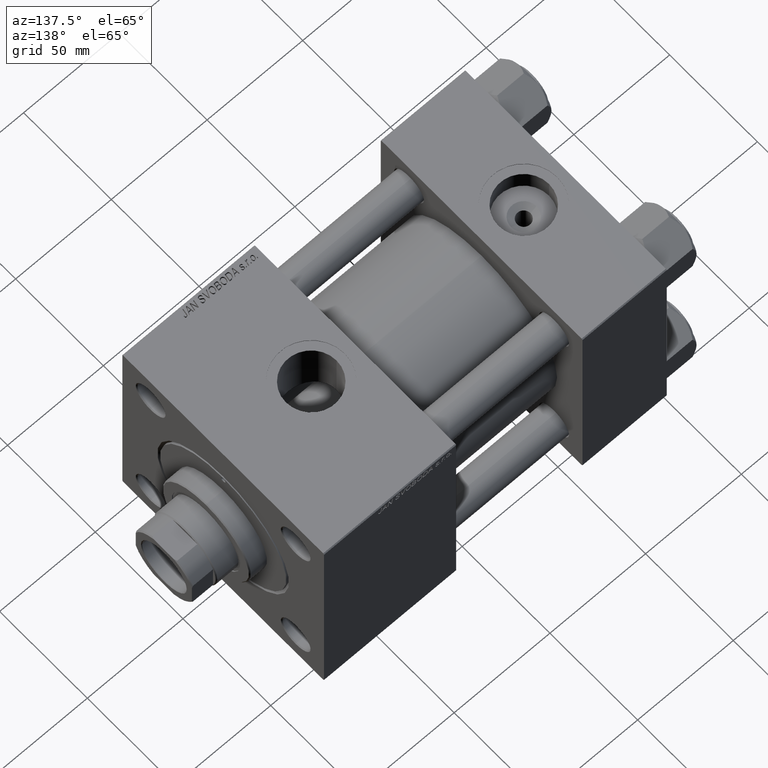
[diagram: clean part render]
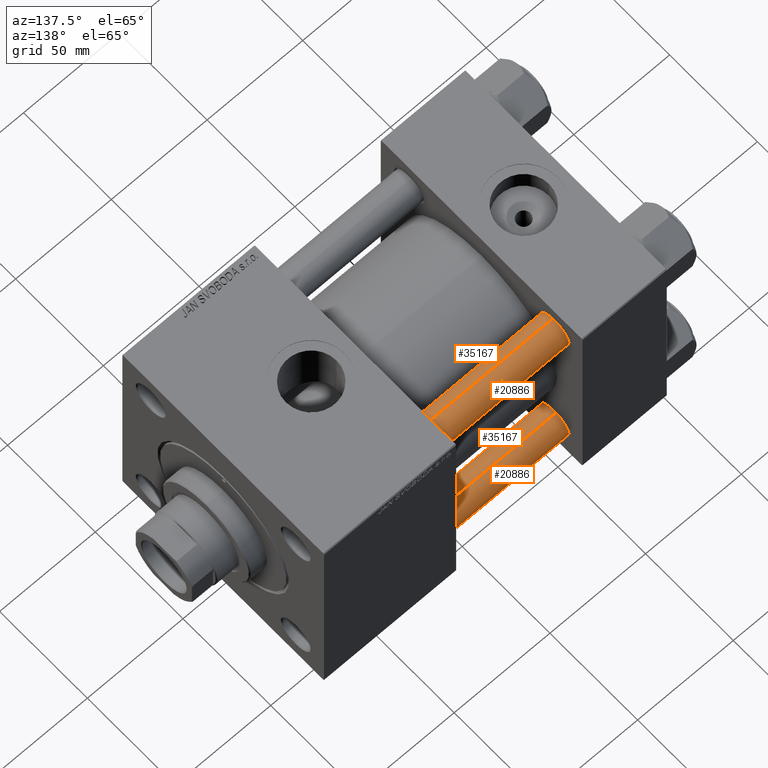
[diagram: same view with one multi-face feature highlighted, each face labeled with its STEP entity id]
A machine part, auxiliary view. The highlighted faces form ONE feature: a constant-radius fillet chain: 4 tangent blend faces with common blend radius 8 mm. The faces share edges in the B-rep.
Their STEP definitions:
[1] entity #35167 (Cylinder):
#1071 = FACE_OUTER_BOUND ( 'NONE', #18925, .T. ) ;
#1137 = LINE ( 'NONE', #44563, #49214 ) ;
#1935 = ORIENTED_EDGE ( 'NONE', *, *, #14462, .T. ) ;
#2198 = AXIS2_PLACEMENT_3D ( 'NONE', #16756, #13586, #13841 ) ;
#11372 = DIRECTION ( 'NONE',  ( -0.000000000000000000, -0.000000000000000000, 1.000000000000000000 ) ) ;
#13586 = DIRECTION ( 'NONE',  ( -0.000000000000000000, -0.000000000000000000, -1.000000000000000000 ) ) ;
#13841 = DIRECTION ( 'NONE',  ( -1.000000000000000000, 0.000000000000000000, 0.000000000000000000 ) ) ;
#14462 = EDGE_CURVE ( 'NONE', #43393, #36994, #26290, .T. ) ;
#15328 = EDGE_CURVE ( 'NONE', #29436, #36994, #41071, .T. ) ;
#16397 = DIRECTION ( 'NONE',  ( 1.000000000000000000, 0.000000000000000000, 0.000000000000000000 ) ) ;
#16756 = CARTESIAN_POINT ( 'NONE',  ( 0.000000000000000000, 0.000000000000000000, 143.0000000000000000 ) ) ;
#16903 = CARTESIAN_POINT ( 'NONE',  ( 0.000000000000000000, 0.000000000000000000, 142.4999999999999716 ) ) ;
#16922 = CIRCLE ( 'NONE', #39080, 8.000000000000000000 ) ;
#18925 = EDGE_LOOP ( 'NONE', ( #43512, #31674, #27037, #1935 ) ) ;
#20413 = DIRECTION ( 'NONE',  ( -0.000000000000000000, -0.000000000000000000, -1.000000000000000000 ) ) ;
#23425 = DIRECTION ( 'NONE',  ( 1.000000000000000000, 0.000000000000000000, 0.000000000000000000 ) ) ;
#23684 = CARTESIAN_POINT ( 'NONE',  ( 0.000000000000000000, 0.000000000000000000, 0.4999999999999726885 ) ) ;
#26173 = CARTESIAN_POINT ( 'NONE',  ( 8.000000000000000000, 9.797174393178825657E-16, 0.4999999999999726885 ) ) ;
#26290 = CIRCLE ( 'NONE', #38606, 8.000000000000000000 ) ;
#27037 = ORIENTED_EDGE ( 'NONE', *, *, #42945, .T. ) ;
#27135 = VECTOR ( 'NONE', #33100, 1000.000000000000000 ) ;
#27867 = CARTESIAN_POINT ( 'NONE',  ( 8.000000000000000000, 9.797174393178825657E-16, 142.4999999999999716 ) ) ;
#29436 = VERTEX_POINT ( 'NONE', #27867 ) ;
#31674 = ORIENTED_EDGE ( 'NONE', *, *, #33399, .T. ) ;
#33100 = DIRECTION ( 'NONE',  ( -0.000000000000000000, -0.000000000000000000, -1.000000000000000000 ) ) ;
#33361 = CYLINDRICAL_SURFACE ( 'NONE', #2198, 8.000000000000000000 ) ;
#33399 = EDGE_CURVE ( 'NONE', #29436, #41085, #16922, .T. ) ;
#35167 = ADVANCED_FACE ( 'NONE', ( #1071 ), #33361, .T. ) ;
#35409 = DIRECTION ( 'NONE',  ( 0.000000000000000000, 0.000000000000000000, -1.000000000000000000 ) ) ;
#36713 = CARTESIAN_POINT ( 'NONE',  ( 8.000000000000000000, 9.797174393178825657E-16, 143.0000000000000000 ) ) ;
#36994 = VERTEX_POINT ( 'NONE', #26173 ) ;
#38606 = AXIS2_PLACEMENT_3D ( 'NONE', #23684, #11372, #23425 ) ;
#39080 = AXIS2_PLACEMENT_3D ( 'NONE', #16903, #35409, #16397 ) ;
#41071 = LINE ( 'NONE', #36713, #27135 ) ;
#41085 = VERTEX_POINT ( 'NONE', #48155 ) ;
#42945 = EDGE_CURVE ( 'NONE', #41085, #43393, #1137, .T. ) ;
#43393 = VERTEX_POINT ( 'NONE', #45484 ) ;
#43512 = ORIENTED_EDGE ( 'NONE', *, *, #15328, .F. ) ;
#44563 = CARTESIAN_POINT ( 'NONE',  ( -8.000000000000000000, 0.000000000000000000, 143.0000000000000000 ) ) ;
#45484 = CARTESIAN_POINT ( 'NONE',  ( -8.000000000000000000, 0.000000000000000000, 0.4999999999999726885 ) ) ;
#48155 = CARTESIAN_POINT ( 'NONE',  ( -8.000000000000000000, 0.000000000000000000, 142.4999999999999716 ) ) ;
#49214 = VECTOR ( 'NONE', #20413, 1000.000000000000000 ) ;
[2] entity #35167 (Cylinder):
#1071 = FACE_OUTER_BOUND ( 'NONE', #18925, .T. ) ;
#1137 = LINE ( 'NONE', #44563, #49214 ) ;
#1935 = ORIENTED_EDGE ( 'NONE', *, *, #14462, .T. ) ;
#2198 = AXIS2_PLACEMENT_3D ( 'NONE', #16756, #13586, #13841 ) ;
#11372 = DIRECTION ( 'NONE',  ( -0.000000000000000000, -0.000000000000000000, 1.000000000000000000 ) ) ;
#13586 = DIRECTION ( 'NONE',  ( -0.000000000000000000, -0.000000000000000000, -1.000000000000000000 ) ) ;
#13841 = DIRECTION ( 'NONE',  ( -1.000000000000000000, 0.000000000000000000, 0.000000000000000000 ) ) ;
#14462 = EDGE_CURVE ( 'NONE', #43393, #36994, #26290, .T. ) ;
#15328 = EDGE_CURVE ( 'NONE', #29436, #36994, #41071, .T. ) ;
#16397 = DIRECTION ( 'NONE',  ( 1.000000000000000000, 0.000000000000000000, 0.000000000000000000 ) ) ;
#16756 = CARTESIAN_POINT ( 'NONE',  ( 0.000000000000000000, 0.000000000000000000, 143.0000000000000000 ) ) ;
#16903 = CARTESIAN_POINT ( 'NONE',  ( 0.000000000000000000, 0.000000000000000000, 142.4999999999999716 ) ) ;
#16922 = CIRCLE ( 'NONE', #39080, 8.000000000000000000 ) ;
#18925 = EDGE_LOOP ( 'NONE', ( #43512, #31674, #27037, #1935 ) ) ;
#20413 = DIRECTION ( 'NONE',  ( -0.000000000000000000, -0.000000000000000000, -1.000000000000000000 ) ) ;
#23425 = DIRECTION ( 'NONE',  ( 1.000000000000000000, 0.000000000000000000, 0.000000000000000000 ) ) ;
#23684 = CARTESIAN_POINT ( 'NONE',  ( 0.000000000000000000, 0.000000000000000000, 0.4999999999999726885 ) ) ;
#26173 = CARTESIAN_POINT ( 'NONE',  ( 8.000000000000000000, 9.797174393178825657E-16, 0.4999999999999726885 ) ) ;
#26290 = CIRCLE ( 'NONE', #38606, 8.000000000000000000 ) ;
#27037 = ORIENTED_EDGE ( 'NONE', *, *, #42945, .T. ) ;
#27135 = VECTOR ( 'NONE', #33100, 1000.000000000000000 ) ;
#27867 = CARTESIAN_POINT ( 'NONE',  ( 8.000000000000000000, 9.797174393178825657E-16, 142.4999999999999716 ) ) ;
#29436 = VERTEX_POINT ( 'NONE', #27867 ) ;
#31674 = ORIENTED_EDGE ( 'NONE', *, *, #33399, .T. ) ;
#33100 = DIRECTION ( 'NONE',  ( -0.000000000000000000, -0.000000000000000000, -1.000000000000000000 ) ) ;
#33361 = CYLINDRICAL_SURFACE ( 'NONE', #2198, 8.000000000000000000 ) ;
#33399 = EDGE_CURVE ( 'NONE', #29436, #41085, #16922, .T. ) ;
#35167 = ADVANCED_FACE ( 'NONE', ( #1071 ), #33361, .T. ) ;
#35409 = DIRECTION ( 'NONE',  ( 0.000000000000000000, 0.000000000000000000, -1.000000000000000000 ) ) ;
#36713 = CARTESIAN_POINT ( 'NONE',  ( 8.000000000000000000, 9.797174393178825657E-16, 143.0000000000000000 ) ) ;
#36994 = VERTEX_POINT ( 'NONE', #26173 ) ;
#38606 = AXIS2_PLACEMENT_3D ( 'NONE', #23684, #11372, #23425 ) ;
#39080 = AXIS2_PLACEMENT_3D ( 'NONE', #16903, #35409, #16397 ) ;
#41071 = LINE ( 'NONE', #36713, #27135 ) ;
#41085 = VERTEX_POINT ( 'NONE', #48155 ) ;
#42945 = EDGE_CURVE ( 'NONE', #41085, #43393, #1137, .T. ) ;
#43393 = VERTEX_POINT ( 'NONE', #45484 ) ;
#43512 = ORIENTED_EDGE ( 'NONE', *, *, #15328, .F. ) ;
#44563 = CARTESIAN_POINT ( 'NONE',  ( -8.000000000000000000, 0.000000000000000000, 143.0000000000000000 ) ) ;
#45484 = CARTESIAN_POINT ( 'NONE',  ( -8.000000000000000000, 0.000000000000000000, 0.4999999999999726885 ) ) ;
#48155 = CARTESIAN_POINT ( 'NONE',  ( -8.000000000000000000, 0.000000000000000000, 142.4999999999999716 ) ) ;
#49214 = VECTOR ( 'NONE', #20413, 1000.000000000000000 ) ;
[3] entity #20886 (Cylinder):
#764 = FACE_OUTER_BOUND ( 'NONE', #43267, .T. ) ;
#1019 = DIRECTION ( 'NONE',  ( -1.000000000000000000, 0.000000000000000000, 0.000000000000000000 ) ) ;
#1137 = LINE ( 'NONE', #44563, #49214 ) ;
#1385 = DIRECTION ( 'NONE',  ( 0.000000000000000000, 0.000000000000000000, -1.000000000000000000 ) ) ;
#4372 = ORIENTED_EDGE ( 'NONE', *, *, #15328, .T. ) ;
#6260 = ORIENTED_EDGE ( 'NONE', *, *, #42945, .F. ) ;
#6295 = CARTESIAN_POINT ( 'NONE',  ( 0.000000000000000000, 0.000000000000000000, 0.4999999999999726885 ) ) ;
#6958 = EDGE_CURVE ( 'NONE', #36994, #43393, #10417, .T. ) ;
#10417 = CIRCLE ( 'NONE', #15375, 8.000000000000000000 ) ;
#11936 = CIRCLE ( 'NONE', #30797, 8.000000000000000000 ) ;
#15328 = EDGE_CURVE ( 'NONE', #29436, #36994, #41071, .T. ) ;
#15375 = AXIS2_PLACEMENT_3D ( 'NONE', #6295, #25301, #33027 ) ;
#16451 = CYLINDRICAL_SURFACE ( 'NONE', #41279, 8.000000000000000000 ) ;
#20413 = DIRECTION ( 'NONE',  ( -0.000000000000000000, -0.000000000000000000, -1.000000000000000000 ) ) ;
#20546 = DIRECTION ( 'NONE',  ( -0.000000000000000000, -0.000000000000000000, -1.000000000000000000 ) ) ;
#20886 = ADVANCED_FACE ( 'NONE', ( #764 ), #16451, .T. ) ;
#21663 = DIRECTION ( 'NONE',  ( 1.000000000000000000, 0.000000000000000000, 0.000000000000000000 ) ) ;
#25301 = DIRECTION ( 'NONE',  ( -0.000000000000000000, -0.000000000000000000, 1.000000000000000000 ) ) ;
#26173 = CARTESIAN_POINT ( 'NONE',  ( 8.000000000000000000, 9.797174393178825657E-16, 0.4999999999999726885 ) ) ;
#27135 = VECTOR ( 'NONE', #33100, 1000.000000000000000 ) ;
#27867 = CARTESIAN_POINT ( 'NONE',  ( 8.000000000000000000, 9.797174393178825657E-16, 142.4999999999999716 ) ) ;
#28652 = EDGE_CURVE ( 'NONE', #41085, #29436, #11936, .T. ) ;
#28871 = CARTESIAN_POINT ( 'NONE',  ( 0.000000000000000000, 0.000000000000000000, 142.4999999999999716 ) ) ;
#29436 = VERTEX_POINT ( 'NONE', #27867 ) ;
#30797 = AXIS2_PLACEMENT_3D ( 'NONE', #28871, #1385, #21663 ) ;
#33027 = DIRECTION ( 'NONE',  ( 1.000000000000000000, 0.000000000000000000, 0.000000000000000000 ) ) ;
#33100 = DIRECTION ( 'NONE',  ( -0.000000000000000000, -0.000000000000000000, -1.000000000000000000 ) ) ;
#36713 = CARTESIAN_POINT ( 'NONE',  ( 8.000000000000000000, 9.797174393178825657E-16, 143.0000000000000000 ) ) ;
#36994 = VERTEX_POINT ( 'NONE', #26173 ) ;
#37251 = ORIENTED_EDGE ( 'NONE', *, *, #28652, .T. ) ;
#41071 = LINE ( 'NONE', #36713, #27135 ) ;
#41085 = VERTEX_POINT ( 'NONE', #48155 ) ;
#41279 = AXIS2_PLACEMENT_3D ( 'NONE', #43941, #20546, #1019 ) ;
#42945 = EDGE_CURVE ( 'NONE', #41085, #43393, #1137, .T. ) ;
#43267 = EDGE_LOOP ( 'NONE', ( #37251, #4372, #49457, #6260 ) ) ;
#43393 = VERTEX_POINT ( 'NONE', #45484 ) ;
#43941 = CARTESIAN_POINT ( 'NONE',  ( 0.000000000000000000, 0.000000000000000000, 143.0000000000000000 ) ) ;
#44563 = CARTESIAN_POINT ( 'NONE',  ( -8.000000000000000000, 0.000000000000000000, 143.0000000000000000 ) ) ;
#45484 = CARTESIAN_POINT ( 'NONE',  ( -8.000000000000000000, 0.000000000000000000, 0.4999999999999726885 ) ) ;
#48155 = CARTESIAN_POINT ( 'NONE',  ( -8.000000000000000000, 0.000000000000000000, 142.4999999999999716 ) ) ;
#49214 = VECTOR ( 'NONE', #20413, 1000.000000000000000 ) ;
#49457 = ORIENTED_EDGE ( 'NONE', *, *, #6958, .T. ) ;
[4] entity #20886 (Cylinder):
#764 = FACE_OUTER_BOUND ( 'NONE', #43267, .T. ) ;
#1019 = DIRECTION ( 'NONE',  ( -1.000000000000000000, 0.000000000000000000, 0.000000000000000000 ) ) ;
#1137 = LINE ( 'NONE', #44563, #49214 ) ;
#1385 = DIRECTION ( 'NONE',  ( 0.000000000000000000, 0.000000000000000000, -1.000000000000000000 ) ) ;
#4372 = ORIENTED_EDGE ( 'NONE', *, *, #15328, .T. ) ;
#6260 = ORIENTED_EDGE ( 'NONE', *, *, #42945, .F. ) ;
#6295 = CARTESIAN_POINT ( 'NONE',  ( 0.000000000000000000, 0.000000000000000000, 0.4999999999999726885 ) ) ;
#6958 = EDGE_CURVE ( 'NONE', #36994, #43393, #10417, .T. ) ;
#10417 = CIRCLE ( 'NONE', #15375, 8.000000000000000000 ) ;
#11936 = CIRCLE ( 'NONE', #30797, 8.000000000000000000 ) ;
#15328 = EDGE_CURVE ( 'NONE', #29436, #36994, #41071, .T. ) ;
#15375 = AXIS2_PLACEMENT_3D ( 'NONE', #6295, #25301, #33027 ) ;
#16451 = CYLINDRICAL_SURFACE ( 'NONE', #41279, 8.000000000000000000 ) ;
#20413 = DIRECTION ( 'NONE',  ( -0.000000000000000000, -0.000000000000000000, -1.000000000000000000 ) ) ;
#20546 = DIRECTION ( 'NONE',  ( -0.000000000000000000, -0.000000000000000000, -1.000000000000000000 ) ) ;
#20886 = ADVANCED_FACE ( 'NONE', ( #764 ), #16451, .T. ) ;
#21663 = DIRECTION ( 'NONE',  ( 1.000000000000000000, 0.000000000000000000, 0.000000000000000000 ) ) ;
#25301 = DIRECTION ( 'NONE',  ( -0.000000000000000000, -0.000000000000000000, 1.000000000000000000 ) ) ;
#26173 = CARTESIAN_POINT ( 'NONE',  ( 8.000000000000000000, 9.797174393178825657E-16, 0.4999999999999726885 ) ) ;
#27135 = VECTOR ( 'NONE', #33100, 1000.000000000000000 ) ;
#27867 = CARTESIAN_POINT ( 'NONE',  ( 8.000000000000000000, 9.797174393178825657E-16, 142.4999999999999716 ) ) ;
#28652 = EDGE_CURVE ( 'NONE', #41085, #29436, #11936, .T. ) ;
#28871 = CARTESIAN_POINT ( 'NONE',  ( 0.000000000000000000, 0.000000000000000000, 142.4999999999999716 ) ) ;
#29436 = VERTEX_POINT ( 'NONE', #27867 ) ;
#30797 = AXIS2_PLACEMENT_3D ( 'NONE', #28871, #1385, #21663 ) ;
#33027 = DIRECTION ( 'NONE',  ( 1.000000000000000000, 0.000000000000000000, 0.000000000000000000 ) ) ;
#33100 = DIRECTION ( 'NONE',  ( -0.000000000000000000, -0.000000000000000000, -1.000000000000000000 ) ) ;
#36713 = CARTESIAN_POINT ( 'NONE',  ( 8.000000000000000000, 9.797174393178825657E-16, 143.0000000000000000 ) ) ;
#36994 = VERTEX_POINT ( 'NONE', #26173 ) ;
#37251 = ORIENTED_EDGE ( 'NONE', *, *, #28652, .T. ) ;
#41071 = LINE ( 'NONE', #36713, #27135 ) ;
#41085 = VERTEX_POINT ( 'NONE', #48155 ) ;
#41279 = AXIS2_PLACEMENT_3D ( 'NONE', #43941, #20546, #1019 ) ;
#42945 = EDGE_CURVE ( 'NONE', #41085, #43393, #1137, .T. ) ;
#43267 = EDGE_LOOP ( 'NONE', ( #37251, #4372, #49457, #6260 ) ) ;
#43393 = VERTEX_POINT ( 'NONE', #45484 ) ;
#43941 = CARTESIAN_POINT ( 'NONE',  ( 0.000000000000000000, 0.000000000000000000, 143.0000000000000000 ) ) ;
#44563 = CARTESIAN_POINT ( 'NONE',  ( -8.000000000000000000, 0.000000000000000000, 143.0000000000000000 ) ) ;
#45484 = CARTESIAN_POINT ( 'NONE',  ( -8.000000000000000000, 0.000000000000000000, 0.4999999999999726885 ) ) ;
#48155 = CARTESIAN_POINT ( 'NONE',  ( -8.000000000000000000, 0.000000000000000000, 142.4999999999999716 ) ) ;
#49214 = VECTOR ( 'NONE', #20413, 1000.000000000000000 ) ;
#49457 = ORIENTED_EDGE ( 'NONE', *, *, #6958, .T. ) ;